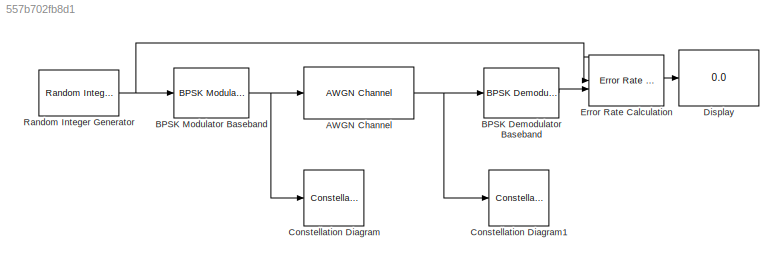
MODEL slx_557b702fb8d1
KIND model
CONFIG AbsTol = auto
CONFIG EnableMultiTasking = off
CONFIG FixedStep = auto
CONFIG MaxStep = auto
CONFIG MinStep = auto
CONFIG RelTol = 1e-3
CONFIG SampleTimeConstraint = Unconstrained
CONFIG SolverName = VariableStepAuto
CONFIG StartTime = 0.0
CONFIG StopTime = 10.0
BLOCK [Reference] AWGN Channel  REF=commchan3/AWGN
Channel
  SourceBlock = commchan3/AWGN\nChannel
  SourceType = AWGN Channel
BLOCK [Reference] BPSK Demodulator Baseband  REF=commdigbbndpm3/BPSK
Demodulator
Baseband
  SourceBlock = commdigbbndpm3/BPSK\nDemodulator\nBaseband
  SourceType = BPSK Demodulator Baseband
BLOCK [Reference] BPSK Modulator Baseband  REF=commdigbbndpm3/BPSK
Modulator
Baseband
  SourceBlock = commdigbbndpm3/BPSK\nModulator\nBaseband
  SourceType = BPSK Modulator Baseband
BLOCK [ConstellationDiagram] Constellation Diagram
  GraphicalSettings = {"GraphicalSettings":{"Style":{}}}
  ScopeFrameLocation = window
  WasSavedAsWebScope = on
  WindowPosition = [382.000000,84.000000,600.000000,600.000000,]
BLOCK [ConstellationDiagram] Constellation Diagram1
  GraphicalSettings = {"GraphicalSettings":{"Style":{}}}
  ScopeFrameLocation = window
  WasSavedAsWebScope = on
  WindowPosition = [382.000000,84.000000,600.000000,600.000000,]
BLOCK [Display] Display
  Format = bank
BLOCK [Reference] Error Rate Calculation  REF=commsink2/Error Rate
Calculation
  LibrarySourceBlock = commhdlsink/Error Rate\nCalculation
  SourceBlock = commsink2/Error Rate\nCalculation
  SourceType = Error Rate Calculation
BLOCK [Reference] Random Integer Generator  REF=commrandsrc3/Random Integer
Generator
  SourceBlock = commrandsrc3/Random Integer\nGenerator
  SourceType = Random Integer Generator
NET AWGN Channel:1 -> BPSK Demodulator Baseband:1, Constellation Diagram1:1
LINE BPSK Demodulator Baseband:1 -> Error Rate Calculation:2
NET BPSK Modulator Baseband:1 -> AWGN Channel:1, Constellation Diagram:1
NET Random Integer Generator:1 -> BPSK Modulator Baseband:1, Display:1, Error Rate Calculation:1
note: NET lines group one-source signal fan-out (src -> all destinations, sorted); 1:1 wires keep LINE
